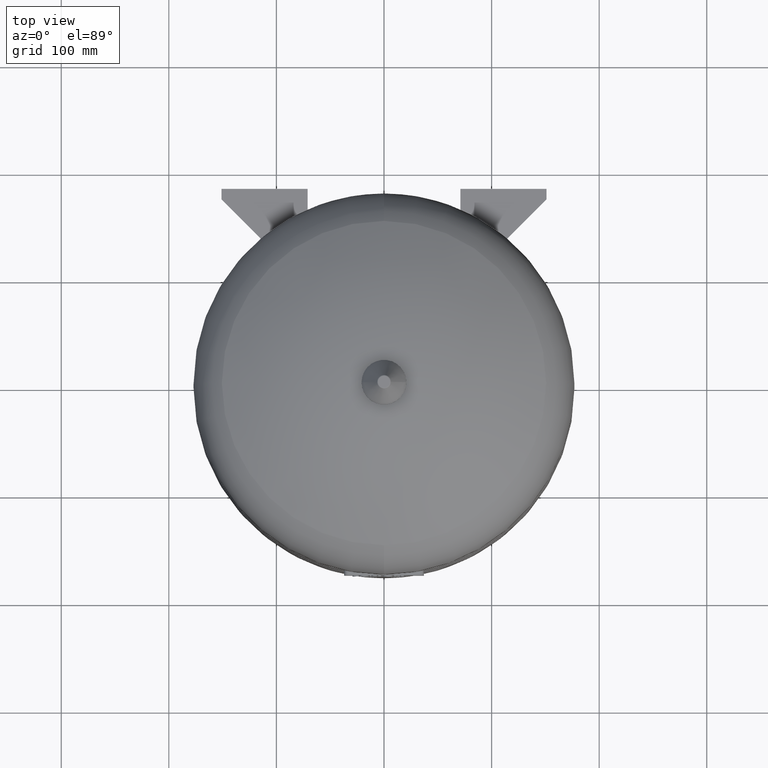
[diagram: clean part render]
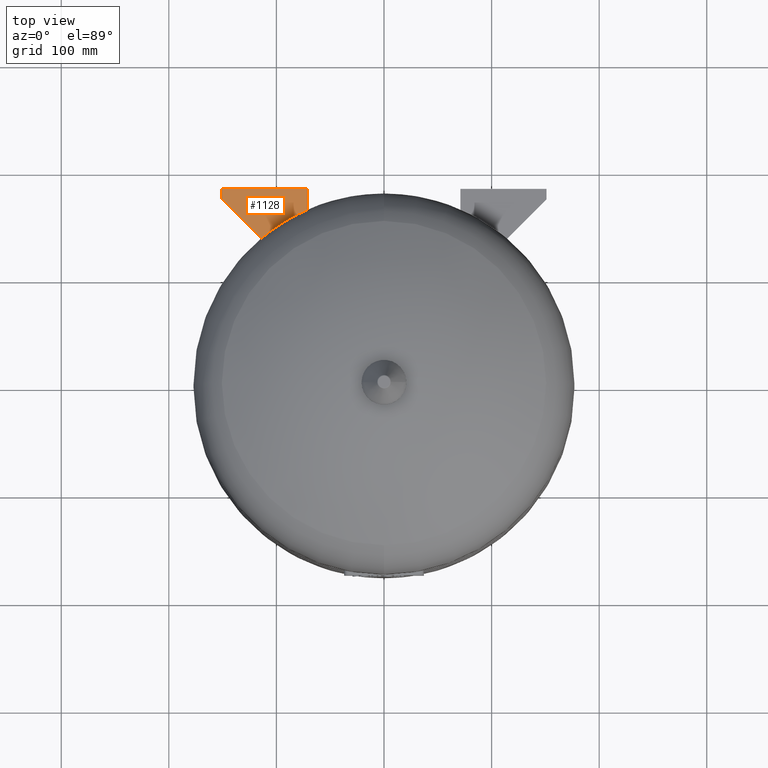
[diagram: same view with one face highlighted and labeled with its STEP entity id]
A machine part, top view. The second image highlights one B-rep face of the part: STEP entity #1128.
In plain terms, the highlighted face is a freeform B-spline surface patch.
Its self-contained STEP definition (entity closure, byte-faithful):
#824=CARTESIAN_POINT('',(-71.0,162.13574559608995,300.5));
#825=VERTEX_POINT('',#824);
#832=CARTESIAN_POINT('',(-113.6735737837013,135.67357378370127,300.5));
#833=VERTEX_POINT('',#832);
#834=CARTESIAN_POINT('',(-5.684342E-014,-2.755455E-015,300.5));
#835=DIRECTION('',(4.887835E-018,-5.833810E-018,1.0));
#836=DIRECTION('',(-0.642223580698877,0.766517366009612,7.610799E-018));
#837=AXIS2_PLACEMENT_3D('',#834,#835,#836);
#838=CIRCLE('',#837,176.99999999999994);
#839=EDGE_CURVE('',#825,#833,#838,.T.);
#927=CARTESIAN_POINT('',(-151.0,173.0,300.5));
#928=VERTEX_POINT('',#927);
#929=CARTESIAN_POINT('',(-113.6735737837013,135.67357378370127,300.5));
#930=DIRECTION('',(-0.707106781186547,0.707106781186548,0.0));
#931=VECTOR('',#930,52.787538190008291);
#932=LINE('',#929,#931);
#933=EDGE_CURVE('',#833,#928,#932,.T.);
#1078=CARTESIAN_POINT('',(-71.0,182.0,300.5));
#1079=VERTEX_POINT('',#1078);
#1086=CARTESIAN_POINT('',(-71.000000000000014,162.13574559608995,300.5));
#1087=DIRECTION('',(0.0,1.0,0.0));
#1088=VECTOR('',#1087,19.864254403910053);
#1089=LINE('',#1086,#1088);
#1090=EDGE_CURVE('',#825,#1079,#1089,.T.);
#1104=CARTESIAN_POINT('',(-71.000000000000014,182.0,300.5));
#1105=CARTESIAN_POINT('',(-151.0,182.0,300.5));
#1106=CARTESIAN_POINT('',(-71.000000000000014,135.67357378370124,300.5));
#1107=CARTESIAN_POINT('',(-151.0,135.67357378370127,300.5));
#1108=B_SPLINE_SURFACE_WITH_KNOTS('',1,1,((#1104,#1106),(#1105,#1107)),.UNSPECIFIED.,.F.,.F.,.U.,(2,2),(2,2),(0.0,79.999999999999986),(0.0,46.326426216298756),.UNSPECIFIED.);
#1109=ORIENTED_EDGE('',*,*,#839,.F.);
#1110=ORIENTED_EDGE('',*,*,#1090,.T.);
#1111=CARTESIAN_POINT('',(-151.0,182.0,300.5));
#1112=VERTEX_POINT('',#1111);
#1113=CARTESIAN_POINT('',(-71.0,182.0,300.5));
#1114=DIRECTION('',(-1.0,0.0,0.0));
#1115=VECTOR('',#1114,80.0);
#1116=LINE('',#1113,#1115);
#1117=EDGE_CURVE('',#1079,#1112,#1116,.T.);
#1118=ORIENTED_EDGE('',*,*,#1117,.T.);
#1119=CARTESIAN_POINT('',(-151.0,173.0,300.5));
#1120=DIRECTION('',(0.0,1.0,0.0));
#1121=VECTOR('',#1120,9.0);
#1122=LINE('',#1119,#1121);
#1123=EDGE_CURVE('',#928,#1112,#1122,.T.);
#1124=ORIENTED_EDGE('',*,*,#1123,.F.);
#1125=ORIENTED_EDGE('',*,*,#933,.F.);
#1126=EDGE_LOOP('',(#1109,#1110,#1118,#1124,#1125));
#1127=FACE_OUTER_BOUND('',#1126,.T.);
#1128=ADVANCED_FACE('',(#1127),#1108,.T.);